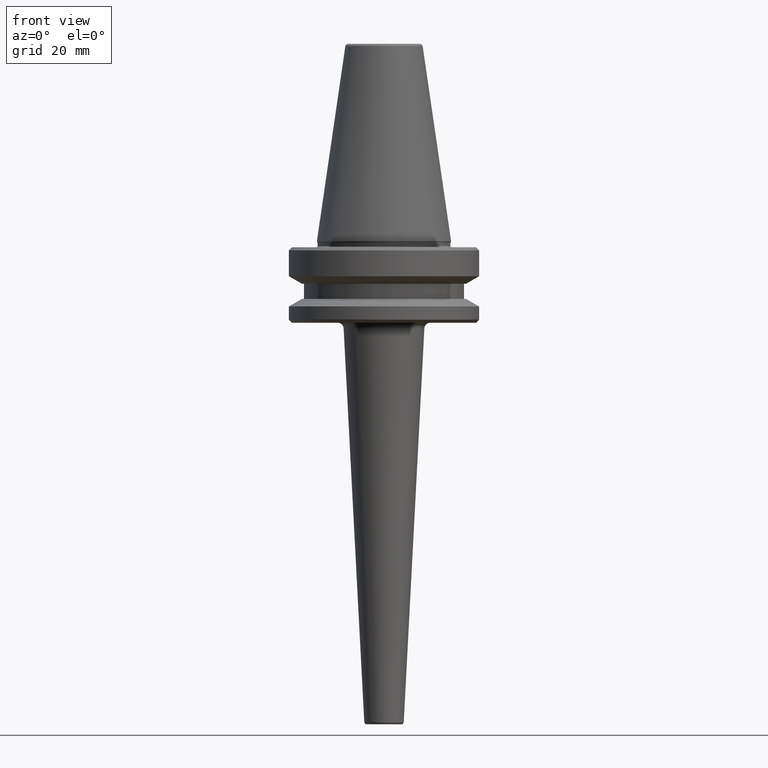
[diagram: clean part render]
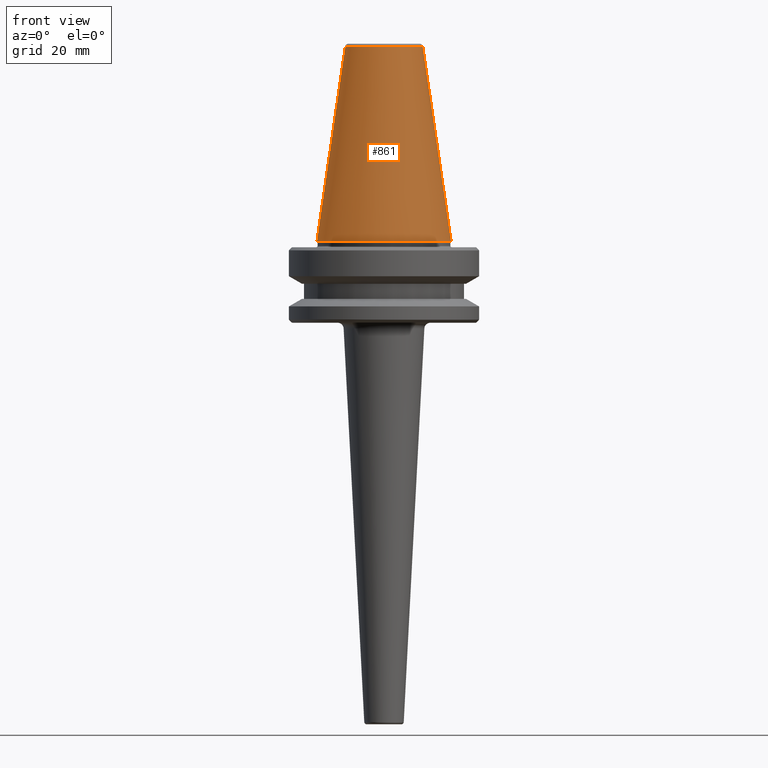
[diagram: same view with one face highlighted and labeled with its STEP entity id]
A machine part, front view. The second image highlights one B-rep face of the part: STEP entity #861.
In plain terms, the highlighted conical surface has half-angle 8.297 deg.
Its self-contained STEP definition (entity closure, byte-faithful):
#61 = AXIS2_PLACEMENT_3D ( 'NONE', #1097, #780, #576 ) ;
#88 = AXIS2_PLACEMENT_3D ( 'NONE', #276, #830, #201 ) ;
#113 = CARTESIAN_POINT ( 'NONE',  ( 12.81219950706223500, 1.569041911636106400E-015, 64.54430822726730800 ) ) ;
#116 = CARTESIAN_POINT ( 'NONE',  ( 0.0000000000000000000, 0.0000000000000000000, 0.0000000000000000000 ) ) ;
#191 = DIRECTION ( 'NONE',  ( -1.000000000000000000, 0.0000000000000000000, 0.0000000000000000000 ) ) ;
#201 = DIRECTION ( 'NONE',  ( -1.000000000000000000, 0.0000000000000000000, 0.0000000000000000000 ) ) ;
#263 = CARTESIAN_POINT ( 'NONE',  ( -22.22500000000000100, 0.0000000000000000000, 0.0000000000000000000 ) ) ;
#276 = CARTESIAN_POINT ( 'NONE',  ( 0.0000000000000000000, 0.0000000000000000000, 64.54430822726730800 ) ) ;
#320 = CONICAL_SURFACE ( 'NONE', #61, 22.22500000000000100, 0.1448138465474192700 ) ;
#327 = CIRCLE ( 'NONE', #440, 22.22500000000000100 ) ;
#340 = FACE_OUTER_BOUND ( 'NONE', #1052, .T. ) ;
#354 = VECTOR ( 'NONE', #574, 1000.000000000000100 ) ;
#356 = LINE ( 'NONE', #263, #354 ) ;
#373 = ORIENTED_EDGE ( 'NONE', *, *, #895, .F. ) ;
#385 = CARTESIAN_POINT ( 'NONE',  ( -22.22500000000000100, 2.721777511104992800E-015, 0.0000000000000000000 ) ) ;
#440 = AXIS2_PLACEMENT_3D ( 'NONE', #116, #790, #191 ) ;
#441 = ORIENTED_EDGE ( 'NONE', *, *, #763, .T. ) ;
#476 = VECTOR ( 'NONE', #1071, 1000.000000000000100 ) ;
#485 = LINE ( 'NONE', #971, #476 ) ;
#505 = CIRCLE ( 'NONE', #88, 12.81219950706223700 ) ;
#562 = EDGE_CURVE ( 'NONE', #886, #866, #485, .T. ) ;
#574 = DIRECTION ( 'NONE',  ( -0.1443082272673072200, 0.0000000000000000000, -0.9895327864921744700 ) ) ;
#576 = DIRECTION ( 'NONE',  ( -1.000000000000000000, 0.0000000000000000000, 0.0000000000000000000 ) ) ;
#628 = EDGE_CURVE ( 'NONE', #886, #965, #505, .T. ) ;
#678 = CARTESIAN_POINT ( 'NONE',  ( 22.22500000000000100, 0.0000000000000000000, 0.0000000000000000000 ) ) ;
#763 = EDGE_CURVE ( 'NONE', #965, #1116, #356, .T. ) ;
#780 = DIRECTION ( 'NONE',  ( -0.0000000000000000000, -0.0000000000000000000, -1.000000000000000000 ) ) ;
#790 = DIRECTION ( 'NONE',  ( -0.0000000000000000000, -0.0000000000000000000, -1.000000000000000000 ) ) ;
#830 = DIRECTION ( 'NONE',  ( -0.0000000000000000000, -0.0000000000000000000, -1.000000000000000000 ) ) ;
#861 = ADVANCED_FACE ( 'NONE', ( #340 ), #320, .T. ) ;
#866 = VERTEX_POINT ( 'NONE', #678 ) ;
#886 = VERTEX_POINT ( 'NONE', #113 ) ;
#895 = EDGE_CURVE ( 'NONE', #866, #1116, #327, .T. ) ;
#965 = VERTEX_POINT ( 'NONE', #1128 ) ;
#971 = CARTESIAN_POINT ( 'NONE',  ( 22.22500000000000100, 2.721777511104992800E-015, 0.0000000000000000000 ) ) ;
#1020 = ORIENTED_EDGE ( 'NONE', *, *, #628, .T. ) ;
#1052 = EDGE_LOOP ( 'NONE', ( #1121, #1020, #441, #373 ) ) ;
#1071 = DIRECTION ( 'NONE',  ( 0.1443082272673072200, 1.767266086135366100E-017, -0.9895327864921744700 ) ) ;
#1097 = CARTESIAN_POINT ( 'NONE',  ( 0.0000000000000000000, 0.0000000000000000000, 0.0000000000000000000 ) ) ;
#1116 = VERTEX_POINT ( 'NONE', #385 ) ;
#1121 = ORIENTED_EDGE ( 'NONE', *, *, #562, .F. ) ;
#1128 = CARTESIAN_POINT ( 'NONE',  ( -12.81219950706223500, 0.0000000000000000000, 64.54430822726730800 ) ) ;